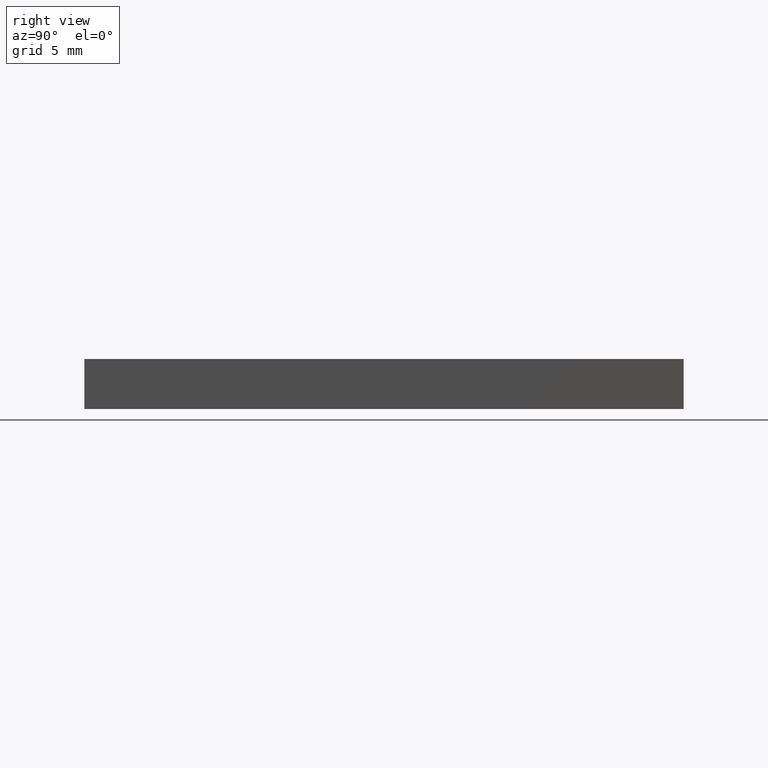
[diagram: clean part render]
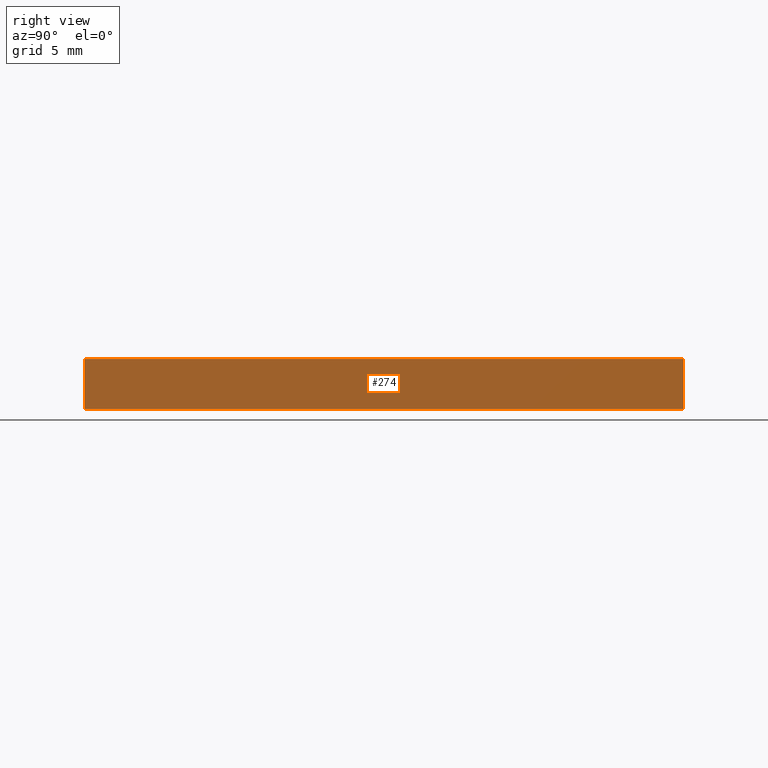
[diagram: same view with one face highlighted and labeled with its STEP entity id]
A machine part, right view. The second image highlights one B-rep face of the part: STEP entity #274.
In plain terms, the highlighted planar face has unit normal (-1, -0, 0).
Its self-contained STEP definition (entity closure, byte-faithful):
#7 = ORIENTED_EDGE ( 'NONE', *, *, #205, .T. ) ;
#11 = VERTEX_POINT ( 'NONE', #101 ) ;
#15 = ORIENTED_EDGE ( 'NONE', *, *, #97, .F. ) ;
#25 = AXIS2_PLACEMENT_3D ( 'NONE', #181, #311, #313 ) ;
#29 = ORIENTED_EDGE ( 'NONE', *, *, #113, .F. ) ;
#45 = CARTESIAN_POINT ( 'NONE',  ( 18.64837398373983700, 7.520325203252024700, 3.000000000000000000 ) ) ;
#46 = DIRECTION ( 'NONE',  ( -0.0000000000000000000, -0.0000000000000000000, -1.000000000000000000 ) ) ;
#70 = VECTOR ( 'NONE', #46, 1000.000000000000000 ) ;
#71 = CARTESIAN_POINT ( 'NONE',  ( 18.64837398373983700, 7.520325203252024700, 0.0000000000000000000 ) ) ;
#76 = VECTOR ( 'NONE', #242, 1000.000000000000000 ) ;
#82 = LINE ( 'NONE', #71, #76 ) ;
#87 = VECTOR ( 'NONE', #124, 1000.000000000000000 ) ;
#97 = EDGE_CURVE ( 'NONE', #108, #11, #251, .T. ) ;
#101 = CARTESIAN_POINT ( 'NONE',  ( 18.64837398373983700, 7.520325203252024700, 3.000000000000000000 ) ) ;
#108 = VERTEX_POINT ( 'NONE', #237 ) ;
#113 = EDGE_CURVE ( 'NONE', #11, #193, #309, .T. ) ;
#121 = CARTESIAN_POINT ( 'NONE',  ( 18.64837398373984800, -28.47967479674797200, 3.000000000000000000 ) ) ;
#124 = DIRECTION ( 'NONE',  ( -0.0000000000000000000, -0.0000000000000000000, -1.000000000000000000 ) ) ;
#127 = CARTESIAN_POINT ( 'NONE',  ( 18.64837398373984800, -28.47967479674797200, 0.0000000000000000000 ) ) ;
#134 = EDGE_LOOP ( 'NONE', ( #140, #29, #15, #7 ) ) ;
#140 = ORIENTED_EDGE ( 'NONE', *, *, #163, .T. ) ;
#163 = EDGE_CURVE ( 'NONE', #246, #193, #82, .T. ) ;
#181 = CARTESIAN_POINT ( 'NONE',  ( 18.64837398373983700, 7.520325203252024700, 3.000000000000000000 ) ) ;
#188 = DIRECTION ( 'NONE',  ( -2.891205793294678800E-016, 1.000000000000000000, -0.0000000000000000000 ) ) ;
#193 = VERTEX_POINT ( 'NONE', #276 ) ;
#205 = EDGE_CURVE ( 'NONE', #108, #246, #288, .T. ) ;
#211 = PLANE ( 'NONE',  #25 ) ;
#236 = FACE_OUTER_BOUND ( 'NONE', #134, .T. ) ;
#237 = CARTESIAN_POINT ( 'NONE',  ( 18.64837398373984800, -28.47967479674797200, 3.000000000000000000 ) ) ;
#242 = DIRECTION ( 'NONE',  ( -2.891205793294678800E-016, 1.000000000000000000, -0.0000000000000000000 ) ) ;
#246 = VERTEX_POINT ( 'NONE', #127 ) ;
#251 = LINE ( 'NONE', #45, #269 ) ;
#261 = CARTESIAN_POINT ( 'NONE',  ( 18.64837398373983700, 7.520325203252024700, 3.000000000000000000 ) ) ;
#269 = VECTOR ( 'NONE', #188, 1000.000000000000000 ) ;
#274 = ADVANCED_FACE ( 'NONE', ( #236 ), #211, .F. ) ;
#276 = CARTESIAN_POINT ( 'NONE',  ( 18.64837398373983700, 7.520325203252024700, 0.0000000000000000000 ) ) ;
#288 = LINE ( 'NONE', #121, #87 ) ;
#309 = LINE ( 'NONE', #261, #70 ) ;
#311 = DIRECTION ( 'NONE',  ( -1.000000000000000000, -2.891205793294678800E-016, 0.0000000000000000000 ) ) ;
#313 = DIRECTION ( 'NONE',  ( 2.891205793294678800E-016, -1.000000000000000000, 0.0000000000000000000 ) ) ;